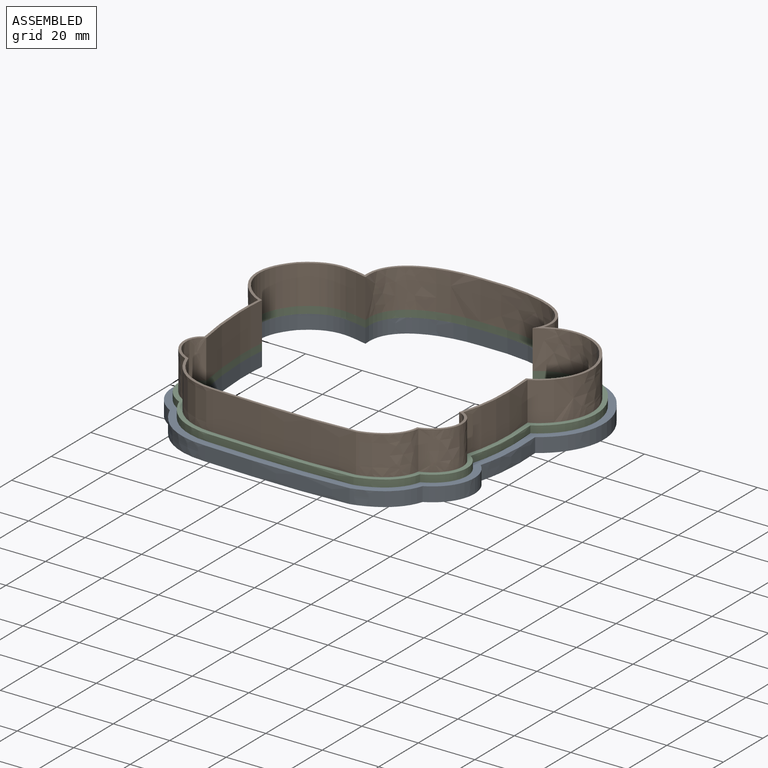
[diagram: assembled view]
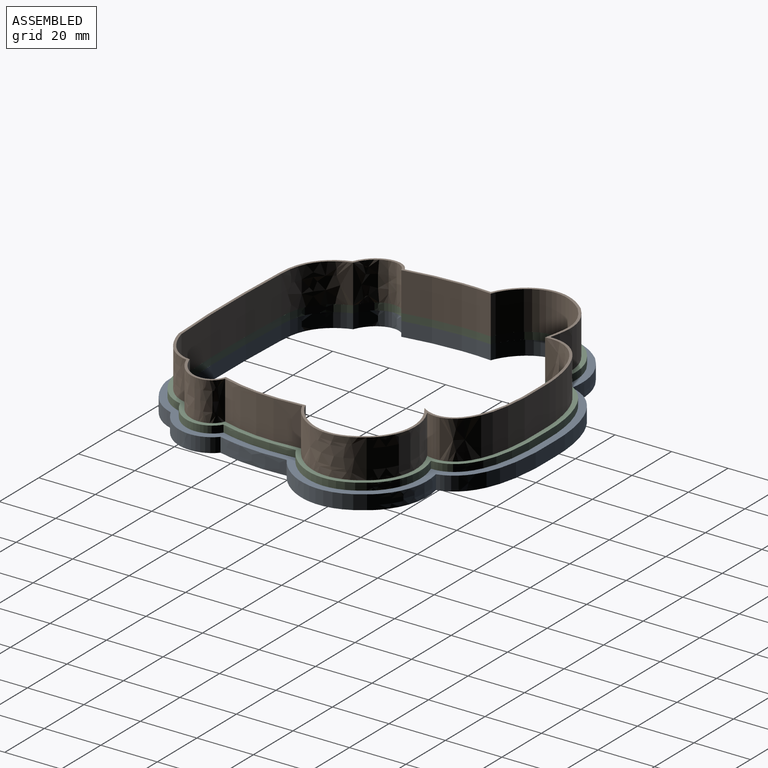
[diagram: assembled view, second angle]
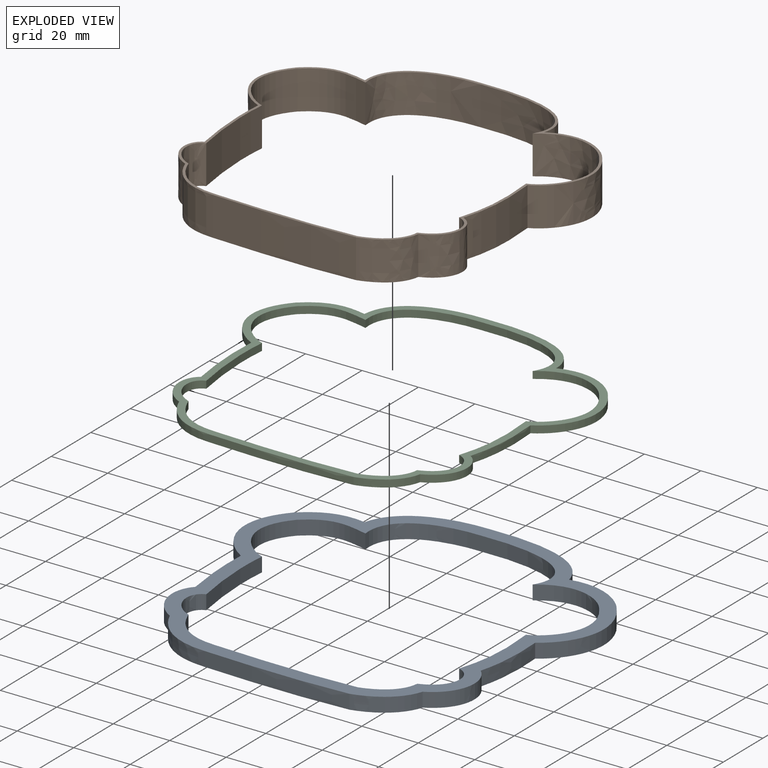
[diagram: exploded view]
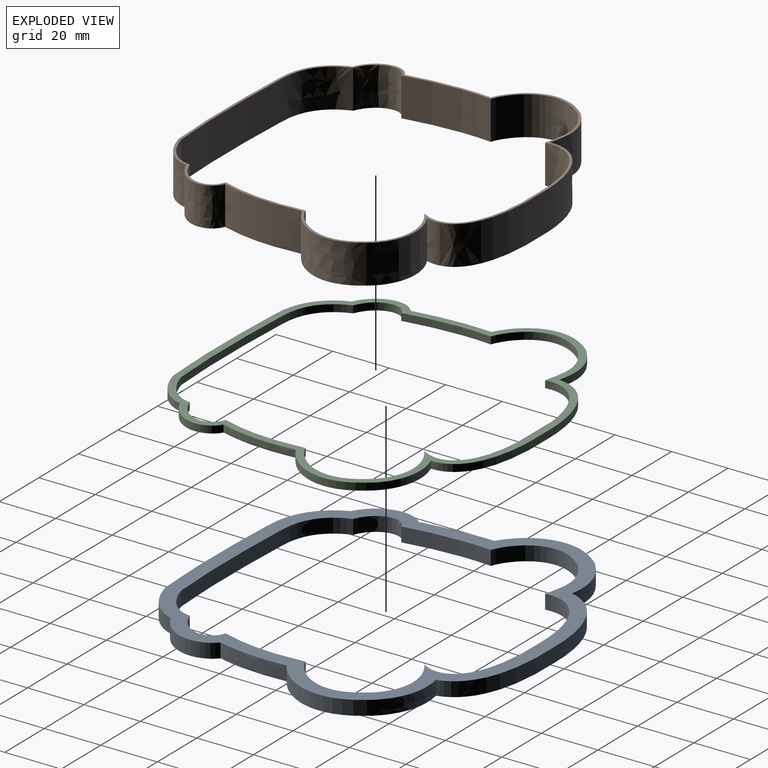
[diagram: exploded view, second angle]
ASSEMBLY  parts=3 mates=2
PART A: 28 faces, bbox 126.3x116.7x5.1 mm
  f0: plane 126.3x116.73mm, normal (0,0,1), area 2036.2mm2, adj f2,f3,f4,f5,f6,f7,f8,f9
  f1: plane 126.3x116.73mm, normal (0,0,-1), area 2036.2mm2, adj f2,f3,f4,f5,f6,f7,f8,f9
  f2: extruded ~33.23x11.07mm, area 198.6mm2, adj f0,f1,f3,f14
  f3: extruded ~25.09x5.08mm, area 127.9mm2, adj f0,f1,f2,f4
  f4: extruded ~20.46x8.23mm, area 123.7mm2, adj f0,f1,f3,f5
  f5: extruded ~22x14.04mm, area 140.9mm2, adj f0,f1,f4,f6
  f6: extruded ~51.47x5.08mm, area 261.6mm2, adj f0,f1,f5,f7
  f7: extruded ~16.5x13.32mm, area 112.5mm2, adj f0,f1,f6,f8
  f8: extruded ~21.5x9.11mm, area 133.1mm2, adj f0,f1,f7,f9
  f9: extruded ~24.77x5.08mm, area 126.8mm2, adj f0,f1,f8,f10
  f10: extruded ~32.63x11.03mm, area 191.5mm2, adj f0,f1,f9,f11
  f11: extruded ~22.8x9.06mm, area 131.1mm2, adj f0,f1,f10,f12
  f12: extruded ~38.46x15.28mm, area 226.3mm2, adj f0,f1,f11,f13
  f13: extruded ~32.75x16.9mm, area 201.5mm2, adj f0,f1,f12,f14
  f14: extruded ~20.51x6.66mm, area 113.3mm2, adj f0,f1,f2,f13
  f15: extruded ~26.54x11.32mm, area 167.2mm2, adj f0,f1,f16,f27
  f16: extruded ~30.54x5.08mm, area 155.9mm2, adj f0,f1,f15,f17
  f17: extruded ~14.38x7.17mm, area 96.4mm2, adj f0,f1,f16,f18
  f18: extruded ~18.16x12.67mm, area 121mm2, adj f0,f1,f17,f19
  f19: extruded ~50.5x5.08mm, area 256.7mm2, adj f0,f1,f18,f20
  f20: extruded ~12.86x11.92mm, area 95mm2, adj f0,f1,f19,f21
  f21: extruded ~15.51x8.47mm, area 110mm2, adj f0,f1,f20,f22
  f22: extruded ~30.12x5.08mm, area 154.8mm2, adj f0,f1,f21,f23
  f23: extruded ~26.63x11.3mm, area 164.1mm2, adj f0,f1,f22,f24
  f24: extruded ~25.42x6.99mm, area 145.8mm2, adj f0,f1,f23,f25
  f25: extruded ~33.63x18.96mm, area 232.2mm2, adj f0,f1,f24,f26
  f26: extruded ~28.24x18.04mm, area 193.1mm2, adj f0,f1,f25,f27
  f27: extruded ~21.59x5.18mm, area 117.5mm2, adj f0,f1,f15,f26
PART B: 28 faces, bbox 126.2x114.2x19.4 mm
  f0: plane 126.23x114.17mm, normal (0,0,1), area 350.9mm2, adj f2,f3,f4,f5,f6,f7,f8,f9
  f1: plane 126.23x114.17mm, normal (0,0,-1), area 350.9mm2, adj f2,f3,f4,f5,f6,f7,f8,f9
  f2: extruded ~27.77x13.72mm, area 466.5mm2, adj f0,f1,f3,f14
  f3: extruded ~29.4x13.72mm, area 404.9mm2, adj f0,f1,f2,f4
  f4: extruded ~15.59x13.72mm, area 273.9mm2, adj f0,f1,f3,f5
  f5: extruded ~18.84x13.72mm, area 335.8mm2, adj f0,f1,f4,f6
  f6: extruded ~50.67x13.72mm, area 695.4mm2, adj f0,f1,f5,f7
  f7: extruded ~13.72x13.54mm, area 264.7mm2, adj f0,f1,f6,f8
  f8: extruded ~16.71x13.72mm, area 307.5mm2, adj f0,f1,f7,f9
  f9: extruded ~28.98x13.72mm, area 401.7mm2, adj f0,f1,f8,f10
  f10: extruded ~27.75x13.72mm, area 456.2mm2, adj f0,f1,f9,f11
  f11: extruded ~23.88x13.72mm, area 367mm2, adj f0,f1,f10,f12
  f12: extruded ~34.53x17.31mm, area 606.7mm2, adj f0,f1,f11,f13
  f13: extruded ~29.12x17.8mm, area 524.7mm2, adj f0,f1,f12,f14
  f14: extruded ~21.23x13.72mm, area 312.8mm2, adj f0,f1,f2,f13
  f15: extruded ~26.54x13.72mm, area 451.4mm2, adj f0,f1,f16,f27
  f16: extruded ~30.54x13.72mm, area 420.8mm2, adj f0,f1,f15,f17
  f17: extruded ~14.38x13.72mm, area 260.4mm2, adj f0,f1,f16,f18
  f18: extruded ~18.16x13.72mm, area 326.7mm2, adj f0,f1,f17,f19
  f19: extruded ~50.5x13.72mm, area 693.1mm2, adj f0,f1,f18,f20
  f20: extruded ~13.72x12.86mm, area 256.5mm2, adj f0,f1,f19,f21
  f21: extruded ~15.51x13.72mm, area 296.9mm2, adj f0,f1,f20,f22
  f22: extruded ~30.12x13.72mm, area 417.9mm2, adj f0,f1,f21,f23
  f23: extruded ~26.63x13.72mm, area 443.1mm2, adj f0,f1,f22,f24
  f24: extruded ~25.42x13.72mm, area 393.5mm2, adj f0,f1,f23,f25
  f25: extruded ~33.63x18.96mm, area 627mm2, adj f0,f1,f24,f26
  f26: extruded ~28.24x18.04mm, area 521.3mm2, adj f0,f1,f25,f27
  f27: extruded ~21.59x13.72mm, area 317.2mm2, adj f0,f1,f15,f26
PART C: 28 faces, bbox 123.4x113.8x4.7 mm
  f0: plane 123.39x113.82mm, normal (0,0,1), area 1006.9mm2, adj f2,f3,f4,f5,f6,f7,f8,f9
  f1: plane 123.39x113.82mm, normal (0,0,-1), area 1006.9mm2, adj f2,f3,f4,f5,f6,f7,f8,f9
  f2: extruded ~29.98x11.17mm, area 91.6mm2, adj f0,f1,f3,f14
  f3: extruded ~27.53x2.54mm, area 70.2mm2, adj f0,f1,f2,f4
  f4: extruded ~17.64x7.69mm, area 55.2mm2, adj f0,f1,f3,f5
  f5: extruded ~20.09x13.32mm, area 65.4mm2, adj f0,f1,f4,f6
  f6: extruded ~50.99x2.54mm, area 129.6mm2, adj f0,f1,f5,f7
  f7: extruded ~14.75x12.6mm, area 51.9mm2, adj f0,f1,f6,f8
  f8: extruded ~18.73x8.72mm, area 60.7mm2, adj f0,f1,f7,f9
  f9: extruded ~27.14x2.58mm, area 69.6mm2, adj f0,f1,f8,f10
  f10: extruded ~29.73x11.15mm, area 89mm2, adj f0,f1,f9,f11
  f11: extruded ~22.99x8.03mm, area 65.5mm2, adj f0,f1,f10,f12
  f12: extruded ~36.2x16.09mm, area 111.5mm2, adj f0,f1,f11,f13
  f13: extruded ~30.71x17.38mm, area 98.4mm2, adj f0,f1,f12,f14
  f14: extruded ~20.78x5.92mm, area 56.9mm2, adj f0,f1,f2,f13
  f15: extruded ~26.54x11.32mm, area 83.6mm2, adj f0,f1,f16,f27
  f16: extruded ~30.54x2.54mm, area 77.9mm2, adj f0,f1,f15,f17
  f17: extruded ~14.38x7.17mm, area 48.2mm2, adj f0,f1,f16,f18
  f18: extruded ~18.16x12.67mm, area 60.5mm2, adj f0,f1,f17,f19
  f19: extruded ~50.5x2.54mm, area 128.3mm2, adj f0,f1,f18,f20
  f20: extruded ~12.86x11.92mm, area 47.5mm2, adj f0,f1,f19,f21
  f21: extruded ~15.51x8.47mm, area 55mm2, adj f0,f1,f20,f22
  f22: extruded ~30.12x3.12mm, area 77.4mm2, adj f0,f1,f21,f23
  f23: extruded ~26.63x11.3mm, area 82.1mm2, adj f0,f1,f22,f24
  f24: extruded ~25.42x6.99mm, area 72.9mm2, adj f0,f1,f23,f25
  f25: extruded ~33.63x18.96mm, area 116.1mm2, adj f0,f1,f24,f26
  f26: extruded ~28.24x18.04mm, area 96.5mm2, adj f0,f1,f25,f27
  f27: extruded ~21.59x5.18mm, area 58.7mm2, adj f0,f1,f15,f26
PLACE A at identity
PLACE B t=(150.4,7.37,7.62)mm
PLACE C t=(297.94,1.49,5.08)mm
MATE fastened B.f1 <-> C.f0  axis (0,0,1) through (98.94,5.29,7.62)mm
MATE fastened C.f1 <-> A.f0  axis (0,0,1) through (98.94,5.29,5.08)mm
